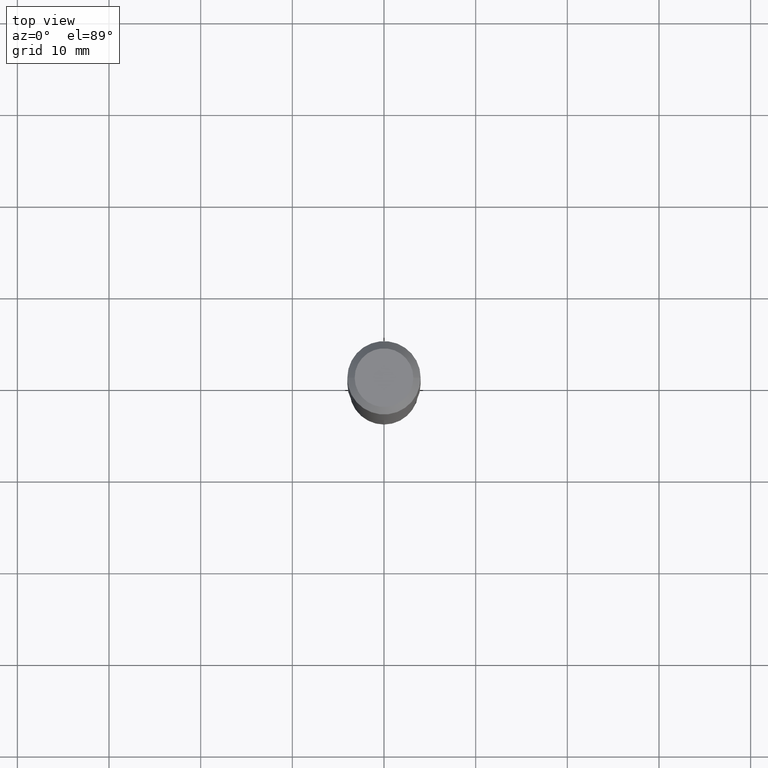
[diagram: clean part render]
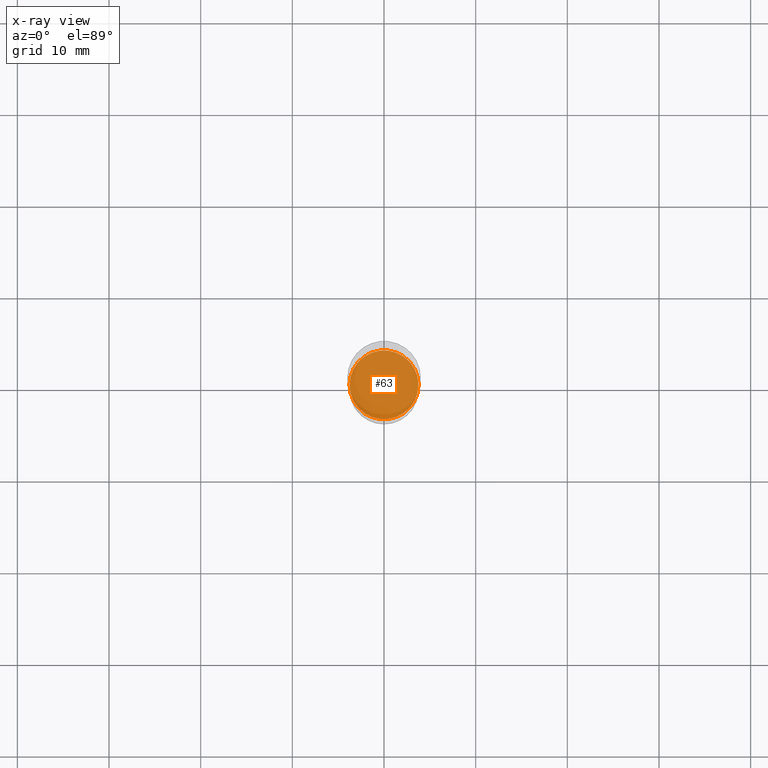
[diagram: x-ray — body ghosted, one internal face saturated and labeled with its STEP entity id]
A machine part, top view, then the same camera in x-ray: the body is ghosted and one INTERNAL B-rep face — a face not visible from any outside direction — is saturated and labeled: STEP entity #63.
In plain terms, the highlighted planar face has unit normal (-0, 0, 1).
Its self-contained STEP definition (entity closure, byte-faithful):
#5 = CARTESIAN_POINT ( 'NONE',  ( 4.383991928848093439E-29, -6.259178596144105809E-15, -1.792699999999999738 ) ) ;
#19 = VERTEX_POINT ( 'NONE', #330 ) ;
#20 = AXIS2_PLACEMENT_3D ( 'NONE', #286, #340, #170 ) ;
#24 = FACE_OUTER_BOUND ( 'NONE', #122, .T. ) ;
#49 = DIRECTION ( 'NONE',  ( -2.445468806185136597E-29, 3.491481338843145583E-15, 1.000000000000000000 ) ) ;
#60 = CARTESIAN_POINT ( 'NONE',  ( 0.1479499999999999982, -7.292307924307788697E-15, -1.792699999999999738 ) ) ;
#63 = ADVANCED_FACE ( 'NONE', ( #24 ), #476, .F. ) ;
#88 = AXIS2_PLACEMENT_3D ( 'NONE', #433, #49, #310 ) ;
#111 = VERTEX_POINT ( 'NONE', #60 ) ;
#115 = DIRECTION ( 'NONE',  ( -2.445468806185136597E-29, 3.491481338843145583E-15, 1.000000000000000000 ) ) ;
#122 = EDGE_LOOP ( 'NONE', ( #275, #256 ) ) ;
#140 = CIRCLE ( 'NONE', #404, 0.1479499999999999982 ) ;
#170 = DIRECTION ( 'NONE',  ( 1.000000000000000000, -6.982962677686265922E-15, 4.876176775795935793E-29 ) ) ;
#204 = EDGE_CURVE ( 'NONE', #111, #19, #140, .T. ) ;
#206 = EDGE_CURVE ( 'NONE', #19, #111, #323, .T. ) ;
#256 = ORIENTED_EDGE ( 'NONE', *, *, #206, .F. ) ;
#275 = ORIENTED_EDGE ( 'NONE', *, *, #204, .F. ) ;
#286 = CARTESIAN_POINT ( 'NONE',  ( 4.383991928848093439E-29, -6.259178596144105809E-15, -1.792699999999999738 ) ) ;
#310 = DIRECTION ( 'NONE',  ( 1.000000000000000000, -6.982962677686265133E-15, 0.000000000000000000 ) ) ;
#323 = CIRCLE ( 'NONE', #88, 0.1479499999999999982 ) ;
#330 = CARTESIAN_POINT ( 'NONE',  ( -0.1479499999999999982, -5.205281391412926987E-15, -1.792699999999999738 ) ) ;
#340 = DIRECTION ( 'NONE',  ( -2.438088387897960049E-29, 3.491481338843145188E-15, 1.000000000000000000 ) ) ;
#383 = DIRECTION ( 'NONE',  ( 1.000000000000000000, -6.982962677686265133E-15, 0.000000000000000000 ) ) ;
#404 = AXIS2_PLACEMENT_3D ( 'NONE', #5, #115, #383 ) ;
#433 = CARTESIAN_POINT ( 'NONE',  ( 4.383991928848093439E-29, -6.259178596144105809E-15, -1.792699999999999738 ) ) ;
#476 = PLANE ( 'NONE',  #20 ) ;